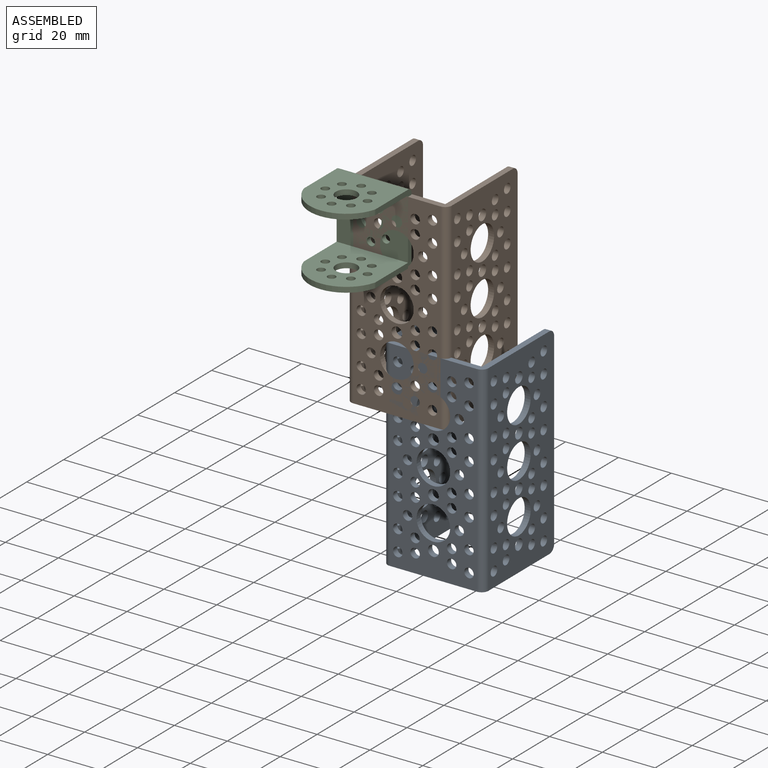
[diagram: assembled view]
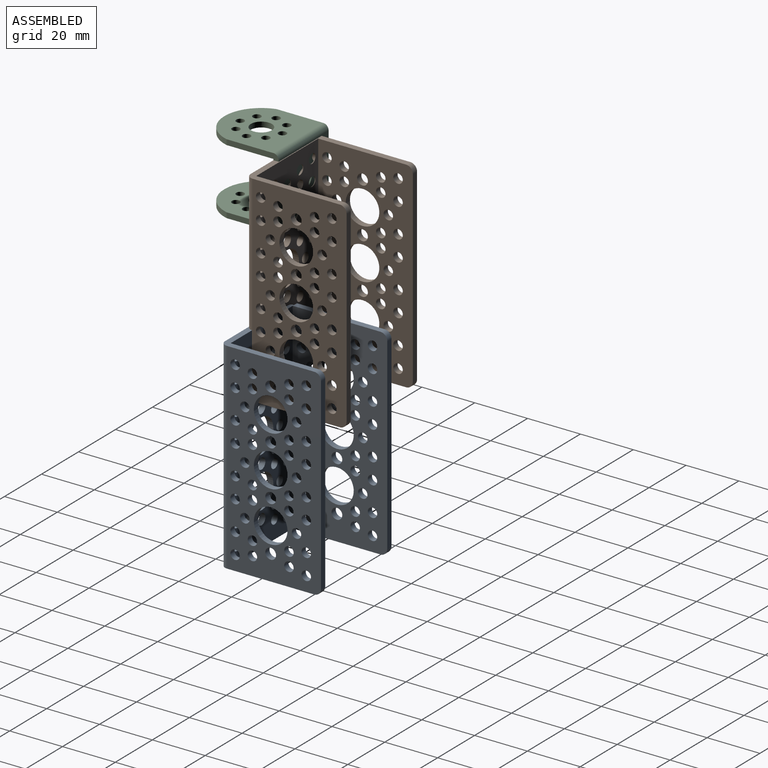
[diagram: assembled view, second angle]
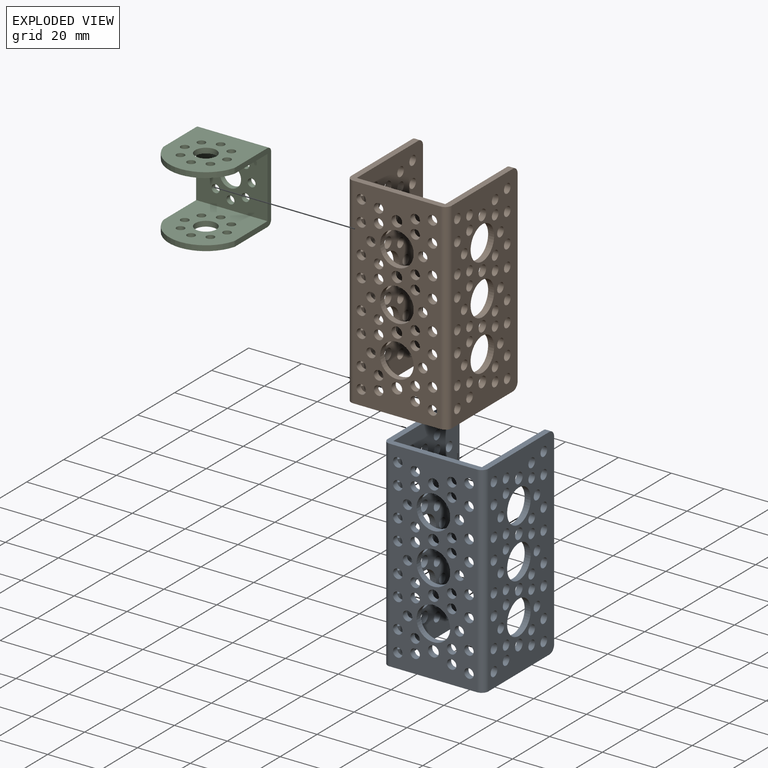
[diagram: exploded view]
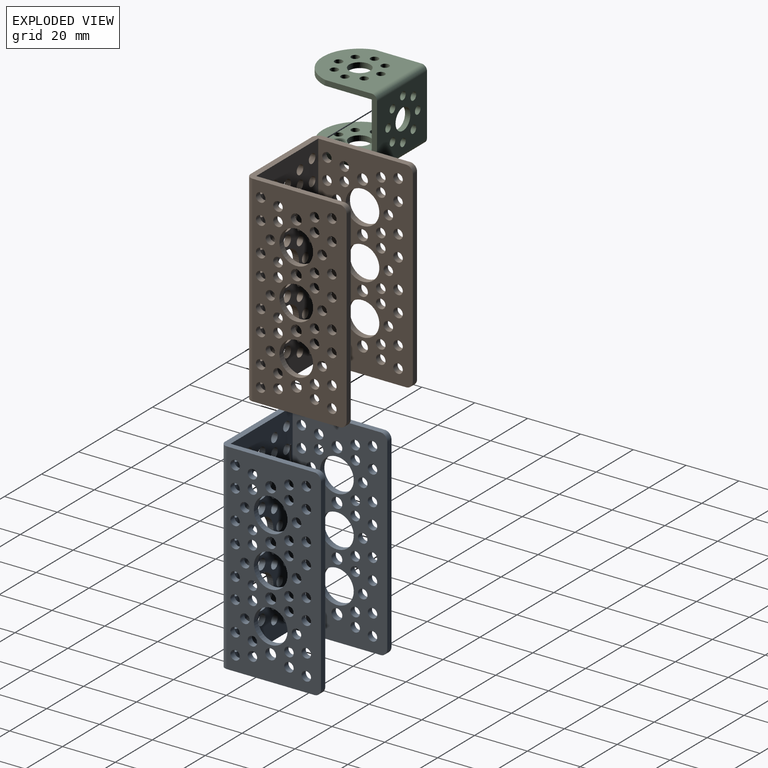
[diagram: exploded view, second angle]
ASSEMBLY  parts=3 mates=2
PART A: 151 faces, bbox 38.1x38.1x76.2 mm
  f0: cylinder r=1.78mm len=3.56mm, axis (0,-1,0), area 25.5mm2, adj f135,f139
  f1: cylinder r=1.78mm len=3.56mm, axis (0,-1,0), area 25.5mm2, adj f135,f139
  f2: cylinder r=1.78mm len=3.56mm, axis (0,-1,0), area 25.5mm2, adj f135,f139
  f3: cylinder r=1.78mm len=3.56mm, axis (0,-1,0), area 25.5mm2, adj f135,f139
  f4: cylinder r=1.78mm len=3.56mm, axis (0,-1,0), area 25.5mm2, adj f135,f139
  f5: cylinder r=1.78mm len=3.56mm, axis (0,-1,0), area 25.5mm2, adj f135,f139
  f6: cylinder r=1.78mm len=3.56mm, axis (0,-1,0), area 25.5mm2, adj f135,f139
  f7: cylinder r=1.78mm len=3.56mm, axis (0,-1,0), area 25.5mm2, adj f135,f139
  f8: cylinder r=1.78mm len=3.56mm, axis (0,-1,0), area 25.5mm2, adj f135,f139
  f9: cylinder r=1.78mm len=3.56mm, axis (0,-1,0), area 25.5mm2, adj f135,f139
  f10: cylinder r=2.03mm len=4.06mm, axis (0,-1,0), area 29.2mm2, adj f135,f139
  f11: cylinder r=2.03mm len=4.06mm, axis (0,-1,0), area 29.2mm2, adj f135,f139
  f12: cylinder r=1.78mm len=3.56mm, axis (0,-1,0), area 25.5mm2, adj f135,f139
  f13: cylinder r=1.78mm len=3.56mm, axis (0,-1,0), area 25.5mm2, adj f135,f139
  f14: cylinder r=1.78mm len=3.56mm, axis (0,-1,0), area 25.5mm2, adj f135,f139
  f15: cylinder r=1.78mm len=3.56mm, axis (0,-1,0), area 25.5mm2, adj f135,f139
  f16: cylinder r=1.78mm len=3.56mm, axis (0,-1,0), area 25.5mm2, adj f135,f139
  f17: cylinder r=1.78mm len=3.56mm, axis (0,-1,0), area 25.5mm2, adj f135,f139
  f18: cylinder r=1.78mm len=3.56mm, axis (0,-1,0), area 25.5mm2, adj f135,f139
  f19: cylinder r=1.78mm len=3.56mm, axis (0,-1,0), area 25.5mm2, adj f135,f139
  f20: cylinder r=1.78mm len=3.56mm, axis (0,-1,0), area 25.5mm2, adj f135,f139
  f21: cylinder r=1.78mm len=3.56mm, axis (0,-1,0), area 25.5mm2, adj f135,f139
  f22: cylinder r=6.36mm len=12.73mm, axis (0,-1,0), area 91.4mm2, adj f135,f139
  f23: cylinder r=6.36mm len=12.73mm, axis (0,-1,0), area 91.4mm2, adj f135,f139
  f24: cylinder r=1.78mm len=3.56mm, axis (0,-1,0), area 25.5mm2, adj f135,f139
  f25: cylinder r=1.78mm len=3.56mm, axis (0,-1,0), area 25.5mm2, adj f135,f139
  f26: cylinder r=1.78mm len=3.56mm, axis (0,-1,0), area 25.5mm2, adj f135,f139
  f27: cylinder r=1.78mm len=3.56mm, axis (0,-1,0), area 25.5mm2, adj f135,f139
  f28: cylinder r=1.78mm len=3.56mm, axis (0,-1,0), area 25.5mm2, adj f135,f139
  f29: cylinder r=1.78mm len=3.56mm, axis (0,-1,0), area 25.5mm2, adj f135,f139
  f30: cylinder r=1.78mm len=3.56mm, axis (0,-1,0), area 25.5mm2, adj f135,f139
  f31: cylinder r=1.78mm len=3.56mm, axis (0,-1,0), area 25.5mm2, adj f135,f139
  f32: cylinder r=1.78mm len=3.56mm, axis (0,-1,0), area 25.5mm2, adj f135,f139
  f33: cylinder r=1.78mm len=3.56mm, axis (0,-1,0), area 25.5mm2, adj f135,f139
  f34: cylinder r=1.78mm len=3.56mm, axis (0,-1,0), area 25.5mm2, adj f135,f139
  f35: cylinder r=1.78mm len=3.56mm, axis (0,-1,0), area 25.5mm2, adj f135,f139
  f36: cylinder r=2.03mm len=4.06mm, axis (0,-1,0), area 29.2mm2, adj f135,f139
  f37: cylinder r=2.03mm len=4.06mm, axis (0,-1,0), area 29.2mm2, adj f135,f139
  f38: cylinder r=1.78mm len=3.56mm, axis (0,-1,0), area 25.5mm2, adj f135,f139
  f39: cylinder r=1.78mm len=3.56mm, axis (0,-1,0), area 25.5mm2, adj f135,f139
  f40: cylinder r=1.78mm len=3.56mm, axis (0,-1,0), area 25.5mm2, adj f135,f139
  f41: cylinder r=1.78mm len=3.56mm, axis (0,-1,0), area 25.5mm2, adj f135,f139
  f42: cylinder r=1.78mm len=3.56mm, axis (0,-1,0), area 25.5mm2, adj f135,f139
  f43: cylinder r=1.78mm len=3.56mm, axis (0,-1,0), area 25.5mm2, adj f135,f139
  f44: cylinder r=6.36mm len=12.73mm, axis (0,-1,0), area 91.4mm2, adj f135,f139
  f45: cylinder r=2.03mm len=4.06mm, axis (1,0,0), area 29.2mm2, adj f136,f138
  f46: cylinder r=2.03mm len=4.06mm, axis (1,0,0), area 29.2mm2, adj f140,f142
  f47: cylinder r=1.78mm len=3.56mm, axis (1,0,0), area 25.5mm2, adj f136,f138
  f48: cylinder r=1.78mm len=3.56mm, axis (1,0,0), area 25.5mm2, adj f140,f142
  f49: cylinder r=1.78mm len=3.56mm, axis (1,0,0), area 25.5mm2, adj f136,f138
  f50: cylinder r=1.78mm len=3.56mm, axis (1,0,0), area 25.5mm2, adj f140,f142
  f51: cylinder r=1.78mm len=3.56mm, axis (1,0,0), area 25.5mm2, adj f136,f138
  f52: cylinder r=1.78mm len=3.56mm, axis (1,0,0), area 25.5mm2, adj f140,f142
  f53: cylinder r=1.78mm len=3.56mm, axis (1,0,0), area 25.5mm2, adj f136,f138
  f54: cylinder r=1.78mm len=3.56mm, axis (1,0,0), area 25.5mm2, adj f140,f142
  f55: cylinder r=1.78mm len=3.56mm, axis (1,0,0), area 25.5mm2, adj f136,f138
  f56: cylinder r=1.78mm len=3.56mm, axis (1,0,0), area 25.5mm2, adj f140,f142
  f57: cylinder r=1.78mm len=3.56mm, axis (1,0,0), area 25.5mm2, adj f136,f138
  f58: cylinder r=1.78mm len=3.56mm, axis (1,0,0), area 25.5mm2, adj f140,f142
  f59: cylinder r=1.78mm len=3.56mm, axis (1,0,0), area 25.5mm2, adj f136,f138
  f60: cylinder r=1.78mm len=3.56mm, axis (1,0,0), area 25.5mm2, adj f140,f142
  f61: cylinder r=1.78mm len=3.56mm, axis (1,0,0), area 25.5mm2, adj f136,f138
  f62: cylinder r=1.78mm len=3.56mm, axis (1,0,0), area 25.5mm2, adj f140,f142
  f63: cylinder r=1.78mm len=3.56mm, axis (1,0,0), area 25.5mm2, adj f136,f138
  f64: cylinder r=1.78mm len=3.56mm, axis (1,0,0), area 25.5mm2, adj f140,f142
  f65: cylinder r=1.78mm len=3.56mm, axis (1,0,0), area 25.5mm2, adj f136,f138
  f66: cylinder r=1.78mm len=3.56mm, axis (1,0,0), area 25.5mm2, adj f140,f142
  f67: cylinder r=1.78mm len=3.56mm, axis (1,0,0), area 25.5mm2, adj f136,f138
  f68: cylinder r=1.78mm len=3.56mm, axis (1,0,0), area 25.5mm2, adj f140,f142
  f69: cylinder r=1.78mm len=3.56mm, axis (1,0,0), area 25.5mm2, adj f136,f138
  f70: cylinder r=1.78mm len=3.56mm, axis (1,0,0), area 25.5mm2, adj f140,f142
  f71: cylinder r=1.78mm len=3.56mm, axis (1,0,0), area 25.5mm2, adj f136,f138
  f72: cylinder r=1.78mm len=3.56mm, axis (1,0,0), area 25.5mm2, adj f140,f142
  f73: cylinder r=1.78mm len=3.56mm, axis (1,0,0), area 25.5mm2, adj f136,f138
  f74: cylinder r=1.78mm len=3.56mm, axis (1,0,0), area 25.5mm2, adj f140,f142
  f75: cylinder r=1.78mm len=3.56mm, axis (1,0,0), area 25.5mm2, adj f136,f138
  f76: cylinder r=1.78mm len=3.56mm, axis (1,0,0), area 25.5mm2, adj f140,f142
  f77: cylinder r=1.78mm len=3.56mm, axis (1,0,0), area 25.5mm2, adj f136,f138
  f78: cylinder r=1.78mm len=3.56mm, axis (1,0,0), area 25.5mm2, adj f140,f142
  f79: cylinder r=2.03mm len=4.06mm, axis (1,0,0), area 29.2mm2, adj f136,f138
  f80: cylinder r=2.03mm len=4.06mm, axis (1,0,0), area 29.2mm2, adj f140,f142
  f81: cylinder r=1.78mm len=3.56mm, axis (1,0,0), area 25.5mm2, adj f136,f138
  f82: cylinder r=1.78mm len=3.56mm, axis (1,0,0), area 25.5mm2, adj f140,f142
  f83: cylinder r=1.78mm len=3.56mm, axis (1,0,0), area 25.5mm2, adj f136,f138
  f84: cylinder r=1.78mm len=3.56mm, axis (1,0,0), area 25.5mm2, adj f140,f142
  f85: cylinder r=1.78mm len=3.56mm, axis (1,0,0), area 25.5mm2, adj f136,f138
  f86: cylinder r=1.78mm len=3.56mm, axis (1,0,0), area 25.5mm2, adj f140,f142
  f87: cylinder r=1.78mm len=3.56mm, axis (1,0,0), area 25.5mm2, adj f136,f138
  f88: cylinder r=1.78mm len=3.56mm, axis (1,0,0), area 25.5mm2, adj f140,f142
  f89: cylinder r=1.78mm len=3.56mm, axis (1,0,0), area 25.5mm2, adj f136,f138
  f90: cylinder r=1.78mm len=3.56mm, axis (1,0,0), area 25.5mm2, adj f140,f142
  f91: cylinder r=1.78mm len=3.56mm, axis (1,0,0), area 25.5mm2, adj f136,f138
  f92: cylinder r=1.78mm len=3.56mm, axis (1,0,0), area 25.5mm2, adj f140,f142
  f93: cylinder r=1.78mm len=3.56mm, axis (1,0,0), area 25.5mm2, adj f136,f138
  f94: cylinder r=1.78mm len=3.56mm, axis (1,0,0), area 25.5mm2, adj f140,f142
  f95: cylinder r=1.78mm len=3.56mm, axis (1,0,0), area 25.5mm2, adj f136,f138
  f96: cylinder r=1.78mm len=3.56mm, axis (1,0,0), area 25.5mm2, adj f140,f142
  f97: cylinder r=1.78mm len=3.56mm, axis (1,0,0), area 25.5mm2, adj f136,f138
  f98: cylinder r=1.78mm len=3.56mm, axis (1,0,0), area 25.5mm2, adj f140,f142
  f99: cylinder r=1.78mm len=3.56mm, axis (1,0,0), area 25.5mm2, adj f136,f138
  f100: cylinder r=1.78mm len=3.56mm, axis (1,0,0), area 25.5mm2, adj f140,f142
  f101: cylinder r=1.78mm len=3.56mm, axis (1,0,0), area 25.5mm2, adj f136,f138
  f102: cylinder r=1.78mm len=3.56mm, axis (1,0,0), area 25.5mm2, adj f140,f142
  f103: cylinder r=1.78mm len=3.56mm, axis (1,0,0), area 25.5mm2, adj f136,f138
  f104: cylinder r=1.78mm len=3.56mm, axis (1,0,0), area 25.5mm2, adj f140,f142
  f105: cylinder r=6.36mm len=12.73mm, axis (1,0,0), area 91.4mm2, adj f140,f142
  f106: cylinder r=6.36mm len=12.73mm, axis (1,0,0), area 91.4mm2, adj f140,f142
  f107: cylinder r=6.36mm len=12.73mm, axis (1,0,0), area 91.4mm2, adj f136,f138
  f108: cylinder r=6.36mm len=12.73mm, axis (1,0,0), area 91.4mm2, adj f136,f138
  f109: cylinder r=1.78mm len=3.56mm, axis (1,0,0), area 25.5mm2, adj f136,f138
  f110: cylinder r=1.78mm len=3.56mm, axis (1,0,0), area 25.5mm2, adj f140,f142
  f111: cylinder r=1.78mm len=3.56mm, axis (1,0,0), area 25.5mm2, adj f136,f138
  f112: cylinder r=1.78mm len=3.56mm, axis (1,0,0), area 25.5mm2, adj f140,f142
  f113: cylinder r=1.78mm len=3.56mm, axis (1,0,0), area 25.5mm2, adj f136,f138
  f114: cylinder r=1.78mm len=3.56mm, axis (1,0,0), area 25.5mm2, adj f140,f142
  f115: cylinder r=1.78mm len=3.56mm, axis (1,0,0), area 25.5mm2, adj f136,f138
  f116: cylinder r=1.78mm len=3.56mm, axis (1,0,0), area 25.5mm2, adj f140,f142
  f117: cylinder r=2.03mm len=4.06mm, axis (1,0,0), area 29.2mm2, adj f136,f138
  f118: cylinder r=2.03mm len=4.06mm, axis (1,0,0), area 29.2mm2, adj f140,f142
  f119: cylinder r=2.03mm len=4.06mm, axis (1,0,0), area 29.2mm2, adj f136,f138
  f120: cylinder r=2.03mm len=4.06mm, axis (1,0,0), area 29.2mm2, adj f140,f142
  f121: cylinder r=1.78mm len=3.56mm, axis (1,0,0), area 25.5mm2, adj f136,f138
  f122: cylinder r=1.78mm len=3.56mm, axis (1,0,0), area 25.5mm2, adj f140,f142
  f123: cylinder r=1.78mm len=3.56mm, axis (1,0,0), area 25.5mm2, adj f136,f138
  f124: cylinder r=1.78mm len=3.56mm, axis (1,0,0), area 25.5mm2, adj f140,f142
  f125: cylinder r=1.78mm len=3.56mm, axis (1,0,0), area 25.5mm2, adj f136,f138
  f126: cylinder r=1.78mm len=3.56mm, axis (1,0,0), area 25.5mm2, adj f140,f142
  f127: cylinder r=1.78mm len=3.56mm, axis (1,0,0), area 25.5mm2, adj f136,f138
  f128: cylinder r=1.78mm len=3.56mm, axis (1,0,0), area 25.5mm2, adj f140,f142
  f129: cylinder r=1.78mm len=3.56mm, axis (1,0,0), area 25.5mm2, adj f136,f138
  f130: cylinder r=1.78mm len=3.56mm, axis (1,0,0), area 25.5mm2, adj f140,f142
  f131: cylinder r=1.78mm len=3.56mm, axis (1,0,0), area 25.5mm2, adj f136,f138
  f132: cylinder r=1.78mm len=3.56mm, axis (1,0,0), area 25.5mm2, adj f140,f142
  f133: cylinder r=6.36mm len=12.73mm, axis (1,0,0), area 91.4mm2, adj f136,f138
  f134: cylinder r=6.36mm len=12.73mm, axis (1,0,0), area 91.4mm2, adj f140,f142
  f135: plane 76.2x33.02mm, normal (0,-1,0), area 1705.3mm2, adj f0,f1,f2,f3,f4,f5,f6,f7
  f136: plane 76.2x35.56mm, normal (1,0,0), area 1896.1mm2, adj f45,f47,f49,f51,f53,f55,f57,f59
  f137: plane 71.12x2.29mm, normal (0,1,0), area 162.6mm2, adj f136,f138,f146,f150
  f138: plane 76.2x35.81mm, normal (-1,0,0), area 1915.4mm2, adj f45,f47,f49,f51,f53,f55,f57,f59
  f139: plane 76.2x33.53mm, normal (0,1,0), area 1744mm2, adj f0,f1,f2,f3,f4,f5,f6,f7
  f140: plane 76.2x35.81mm, normal (1,0,0), area 1915.4mm2, adj f46,f48,f50,f52,f54,f56,f58,f60
  f141: plane 71.12x2.29mm, normal (0,1,0), area 162.6mm2, adj f140,f142,f145,f149
  f142: plane 76.2x35.56mm, normal (-1,0,0), area 1896.1mm2, adj f46,f48,f50,f52,f54,f56,f58,f60
  f143: plane 38.1x35.56mm, normal (0,0,1), area 236.5mm2, adj f135,f136,f138,f139,f140,f142,f145,f146
  f144: plane 38.1x35.56mm, normal (0,0,-1), area 236.5mm2, adj f135,f136,f138,f139,f140,f142,f147,f148
  f145: cylinder r=2.54mm len=2.54mm, axis (-1,0,0), area 9.1mm2, adj f140,f141,f142,f143
  f146: cylinder r=2.54mm len=2.54mm, axis (-1,0,0), area 9.1mm2, adj f136,f137,f138,f143
  f147: cylinder r=2.54mm len=76.2mm, axis (0,0,-1), area 304mm2, adj f135,f142,f143,f144
  f148: cylinder r=2.54mm len=76.2mm, axis (0,0,-1), area 304mm2, adj f135,f136,f143,f144
  f149: cylinder r=2.54mm len=2.54mm, axis (1,0,0), area 9.1mm2, adj f140,f141,f142,f144
  f150: cylinder r=2.54mm len=2.54mm, axis (1,0,0), area 9.1mm2, adj f136,f137,f138,f144
PART B: same geometry as A
PART C: 43 faces, bbox 27x27x30 mm
  f0: plane 28x27mm, normal (0,1,0), area 576.6mm2, adj f3,f6,f7,f17,f18,f19,f20,f21
  f1: plane 28x27mm, normal (0,-1,0), area 576.6mm2, adj f6,f7,f17,f18,f19,f20,f21,f22
  f2: plane 28x27mm, normal (0,-1,0), area 576.6mm2, adj f3,f6,f7,f8,f9,f10,f11,f12
  f3: plane 27x23mm, normal (0,0,1), area 514.2mm2, adj f0,f2,f6,f7,f34,f35,f36,f37
  f4: plane 27x23mm, normal (0,0,-1), area 514.2mm2, adj f6,f7,f32,f33,f34,f35,f36,f37
  f5: plane 28x27mm, normal (0,1,0), area 576.6mm2, adj f6,f7,f8,f9,f10,f11,f12,f13
  f6: plane 27x19.43mm, normal (1,0,0), area 122mm2, adj f0,f1,f2,f3,f4,f5,f28,f30
  f7: plane 27x19.43mm, normal (-1,0,0), area 122mm2, adj f0,f1,f2,f3,f4,f5,f29,f31
  f8: cylinder r=1.5mm len=3mm, axis (0,1,0), area 18.8mm2, adj f2,f5
  f9: cylinder r=1.5mm len=3mm, axis (0,1,0), area 18.8mm2, adj f2,f5
  f10: cylinder r=1.5mm len=3mm, axis (0,1,0), area 18.8mm2, adj f2,f5
  f11: cylinder r=4mm len=8mm, axis (0,1,0), area 50.3mm2, adj f2,f5
  f12: cylinder r=1.5mm len=3mm, axis (0,1,0), area 18.8mm2, adj f2,f5
  f13: cylinder r=1.5mm len=3mm, axis (0,1,0), area 18.8mm2, adj f2,f5
  f14: cylinder r=1.5mm len=3mm, axis (0,1,0), area 18.8mm2, adj f2,f5
  f15: cylinder r=1.5mm len=3mm, axis (0,1,0), area 18.8mm2, adj f2,f5
  f16: cylinder r=1.5mm len=3mm, axis (0,1,0), area 18.8mm2, adj f2,f5
  f17: cylinder r=1.5mm len=3mm, axis (0,1,0), area 18.8mm2, adj f0,f1
  f18: cylinder r=1.5mm len=3mm, axis (0,1,0), area 18.8mm2, adj f0,f1
  f19: cylinder r=1.5mm len=3mm, axis (0,1,0), area 18.8mm2, adj f0,f1
  f20: cylinder r=4mm len=8mm, axis (0,1,0), area 50.3mm2, adj f0,f1
  f21: cylinder r=1.5mm len=3mm, axis (0,1,0), area 18.8mm2, adj f0,f1
  f22: cylinder r=1.5mm len=3mm, axis (0,1,0), area 18.8mm2, adj f0,f1
  f23: cylinder r=1.5mm len=3mm, axis (0,1,0), area 18.8mm2, adj f0,f1
  f24: cylinder r=1.5mm len=3mm, axis (0,1,0), area 18.8mm2, adj f0,f1
  f25: cylinder r=1.5mm len=3mm, axis (0,1,0), area 18.8mm2, adj f0,f1
  f26: cylinder r=14mm len=26.83mm, axis (0,1,0), area 71.7mm2, adj f2,f5,f28,f29
  f27: cylinder r=14mm len=26.83mm, axis (0,1,0), area 71.7mm2, adj f0,f1,f30,f31
  f28: cylinder r=2mm len=2mm, axis (0,1,0), area 1.2mm2, adj f2,f5,f6,f26
  f29: cylinder r=2mm len=2mm, axis (0,1,0), area 1.2mm2, adj f2,f5,f7,f26
  f30: cylinder r=2mm len=2mm, axis (0,1,0), area 1.2mm2, adj f0,f1,f6,f27
  f31: cylinder r=2mm len=2mm, axis (0,1,0), area 1.2mm2, adj f0,f1,f7,f27
  f32: cylinder r=2mm len=27mm, axis (1,0,0), area 84.8mm2, adj f1,f4,f6,f7
  f33: cylinder r=2mm len=27mm, axis (-1,0,0), area 84.8mm2, adj f4,f5,f6,f7
  f34: cylinder r=4mm len=8mm, axis (0,0,-1), area 50.3mm2, adj f3,f4
  f35: cylinder r=1.5mm len=3mm, axis (0,0,-1), area 18.8mm2, adj f3,f4
  f36: cylinder r=1.5mm len=3mm, axis (0,0,-1), area 18.8mm2, adj f3,f4
  f37: cylinder r=1.5mm len=3mm, axis (0,0,-1), area 18.8mm2, adj f3,f4
  f38: cylinder r=1.5mm len=3mm, axis (0,0,-1), area 18.8mm2, adj f3,f4
  f39: cylinder r=1.5mm len=3mm, axis (0,0,-1), area 18.8mm2, adj f3,f4
  f40: cylinder r=1.5mm len=3mm, axis (0,0,-1), area 18.8mm2, adj f3,f4
  f41: cylinder r=1.5mm len=3mm, axis (0,0,-1), area 18.8mm2, adj f3,f4
  f42: cylinder r=1.5mm len=3mm, axis (0,0,-1), area 18.8mm2, adj f3,f4
PLACE A t=(-49.76,-50.4,-133.04)mm
PLACE B t=(-63.59,-50.4,-81.11)mm
PLACE C rot(axis=(1,0,0),90deg) t=(-67.32,-48.4,-29.46)mm
MATE fastened B.f43 <-> A.f14  axis (0,-1,0) through (-37.63,-50.4,-68.97)mm
MATE fastened C.f36 <-> B.f13  axis (0,-1,0) through (-54.32,-50.4,-23.96)mm
